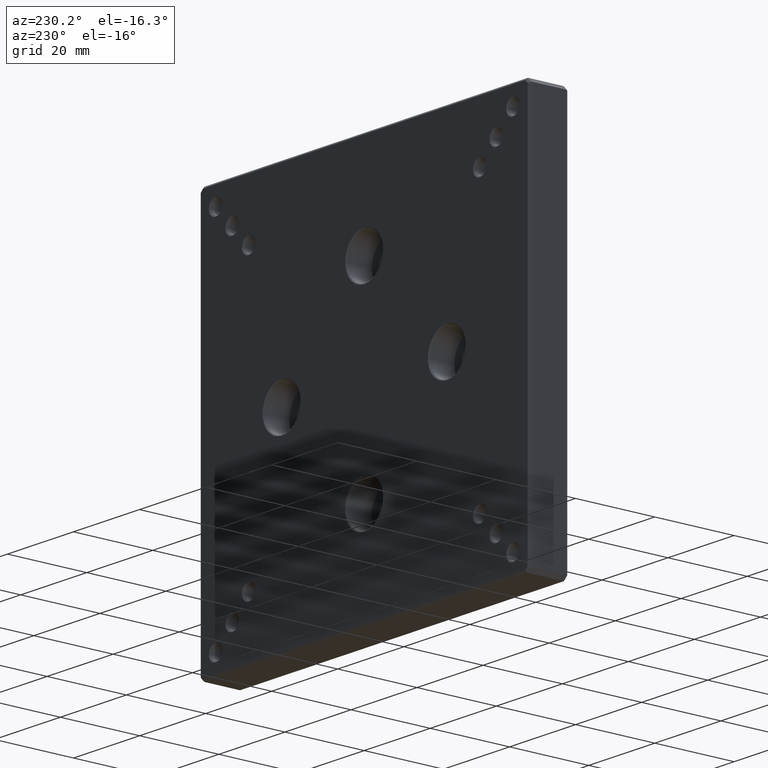
[diagram: clean part render]
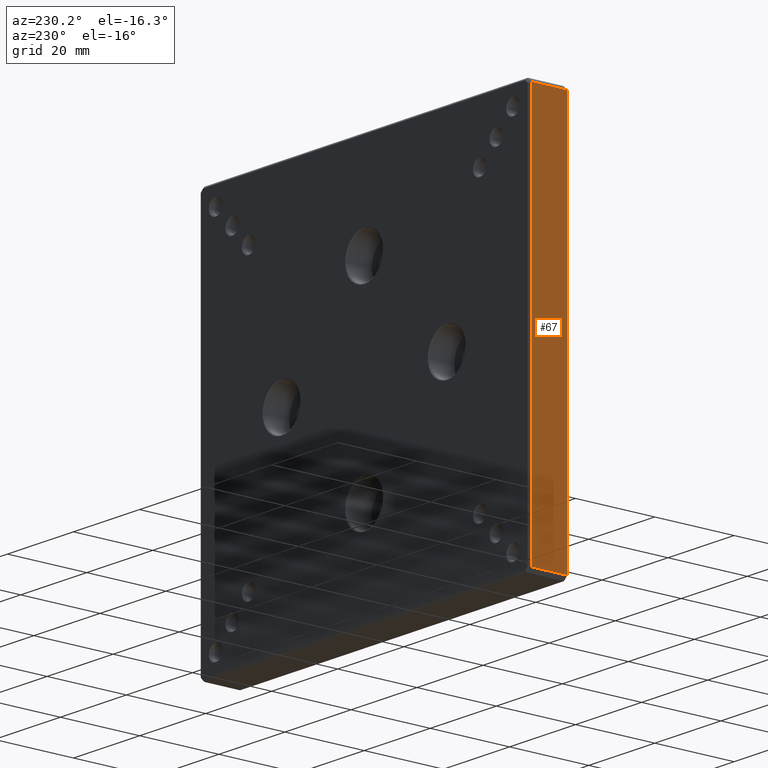
[diagram: same view with one face highlighted and labeled with its STEP entity id]
A machine part, auxiliary view. The second image highlights one B-rep face of the part: STEP entity #67.
In plain terms, the highlighted planar face has unit normal (1, 0, -0).
Its self-contained STEP definition (entity closure, byte-faithful):
#31 = ORIENTED_EDGE ( 'NONE', *, *, #1582, .T. ) ;
#46 = LINE ( 'NONE', #198, #1453 ) ;
#61 = EDGE_CURVE ( 'NONE', #992, #1381, #95, .T. ) ;
#67 = ADVANCED_FACE ( 'NONE', ( #767 ), #461, .F. ) ;
#95 = LINE ( 'NONE', #218, #1714 ) ;
#96 = CARTESIAN_POINT ( 'NONE',  ( -50.00000000000000711, 0.5000000000000004441, -48.99999999999997158 ) ) ;
#194 = ORIENTED_EDGE ( 'NONE', *, *, #1542, .T. ) ;
#198 = CARTESIAN_POINT ( 'NONE',  ( -50.00000000000000711, 9.500000000000000000, -48.99999999999997158 ) ) ;
#218 = CARTESIAN_POINT ( 'NONE',  ( -50.00000000000000711, 10.00000000000000000, -48.99999999999997158 ) ) ;
#315 = EDGE_LOOP ( 'NONE', ( #1254, #31, #1059, #194 ) ) ;
#348 = CARTESIAN_POINT ( 'NONE',  ( -50.00000000000000711, 10.00000000000000000, -49.99999999999998579 ) ) ;
#461 = PLANE ( 'NONE',  #1199 ) ;
#482 = DIRECTION ( 'NONE',  ( -1.387778780781445676E-16, 0.000000000000000000, -1.000000000000000000 ) ) ;
#574 = VECTOR ( 'NONE', #852, 1000.000000000000000 ) ;
#622 = VERTEX_POINT ( 'NONE', #1112 ) ;
#743 = DIRECTION ( 'NONE',  ( -1.387778780781445676E-16, 0.000000000000000000, -1.000000000000000000 ) ) ;
#767 = FACE_OUTER_BOUND ( 'NONE', #315, .T. ) ;
#852 = DIRECTION ( 'NONE',  ( 0.000000000000000000, 1.000000000000000000, 0.000000000000000000 ) ) ;
#878 = CARTESIAN_POINT ( 'NONE',  ( -49.99999999999999289, 10.00000000000000000, 49.00000000000001421 ) ) ;
#992 = VERTEX_POINT ( 'NONE', #1182 ) ;
#996 = DIRECTION ( 'NONE',  ( 1.387778780781445676E-16, 0.000000000000000000, 1.000000000000000000 ) ) ;
#1023 = CARTESIAN_POINT ( 'NONE',  ( -50.00000000000000711, 0.5000000000000004441, -49.99999999999998579 ) ) ;
#1048 = VECTOR ( 'NONE', #996, 1000.000000000000000 ) ;
#1059 = ORIENTED_EDGE ( 'NONE', *, *, #1211, .T. ) ;
#1112 = CARTESIAN_POINT ( 'NONE',  ( -49.99999999999999289, 9.500000000000000000, 49.00000000000001421 ) ) ;
#1132 = LINE ( 'NONE', #1023, #1048 ) ;
#1182 = CARTESIAN_POINT ( 'NONE',  ( -50.00000000000000711, 9.500000000000000000, -48.99999999999997158 ) ) ;
#1199 = AXIS2_PLACEMENT_3D ( 'NONE', #348, #1583, #482 ) ;
#1211 = EDGE_CURVE ( 'NONE', #1235, #622, #1399, .T. ) ;
#1235 = VERTEX_POINT ( 'NONE', #1409 ) ;
#1254 = ORIENTED_EDGE ( 'NONE', *, *, #61, .T. ) ;
#1381 = VERTEX_POINT ( 'NONE', #96 ) ;
#1399 = LINE ( 'NONE', #878, #574 ) ;
#1409 = CARTESIAN_POINT ( 'NONE',  ( -49.99999999999999289, 0.5000000000000004441, 49.00000000000001421 ) ) ;
#1453 = VECTOR ( 'NONE', #743, 1000.000000000000000 ) ;
#1542 = EDGE_CURVE ( 'NONE', #622, #992, #46, .T. ) ;
#1582 = EDGE_CURVE ( 'NONE', #1381, #1235, #1132, .T. ) ;
#1583 = DIRECTION ( 'NONE',  ( 1.000000000000000000, 0.000000000000000000, -1.387778780781445676E-16 ) ) ;
#1608 = DIRECTION ( 'NONE',  ( 0.000000000000000000, -1.000000000000000000, 0.000000000000000000 ) ) ;
#1714 = VECTOR ( 'NONE', #1608, 1000.000000000000000 ) ;